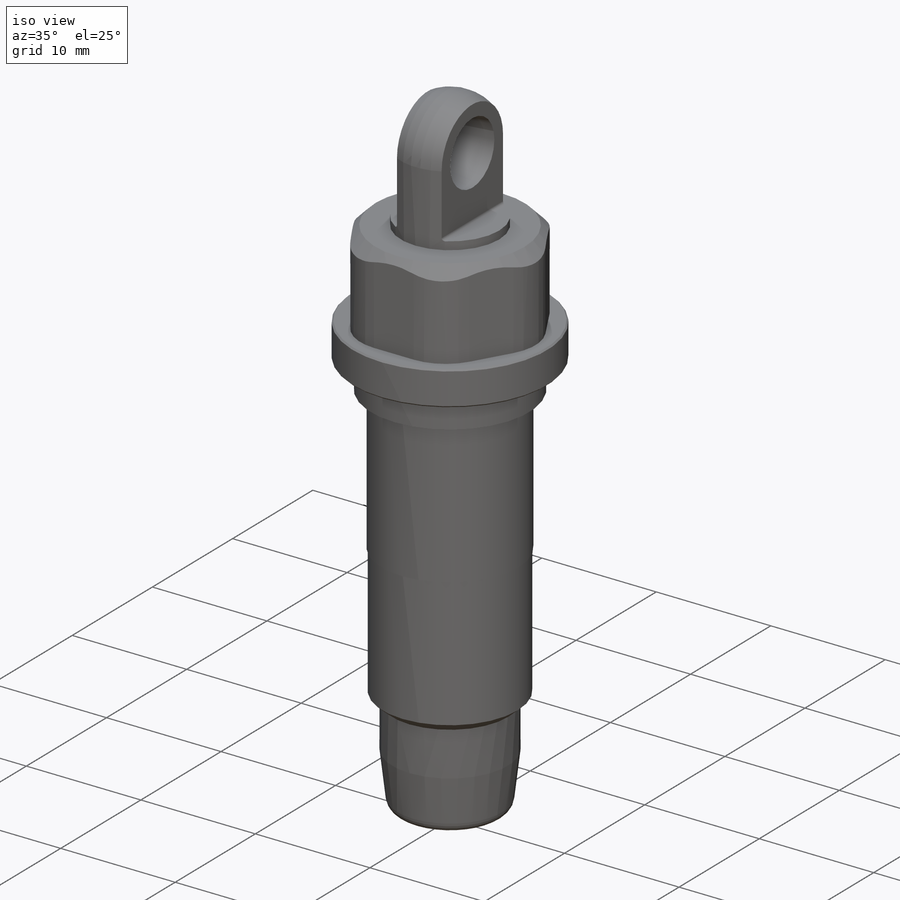
[diagram: iso view]
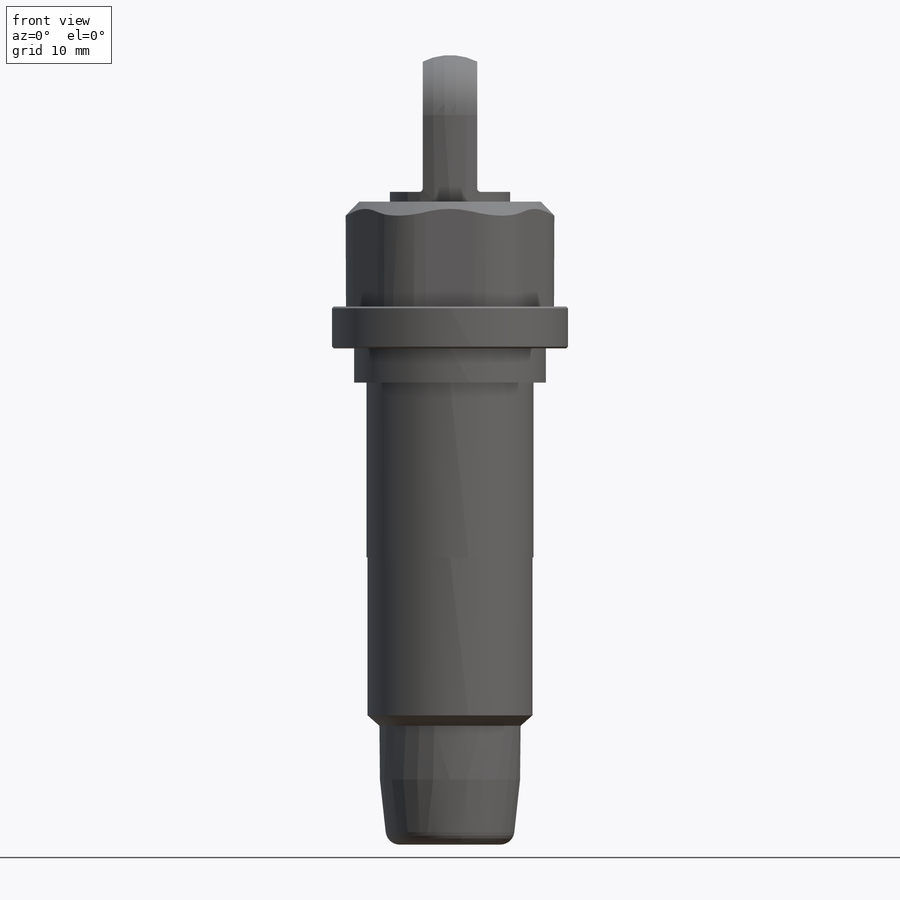
[diagram: front view]
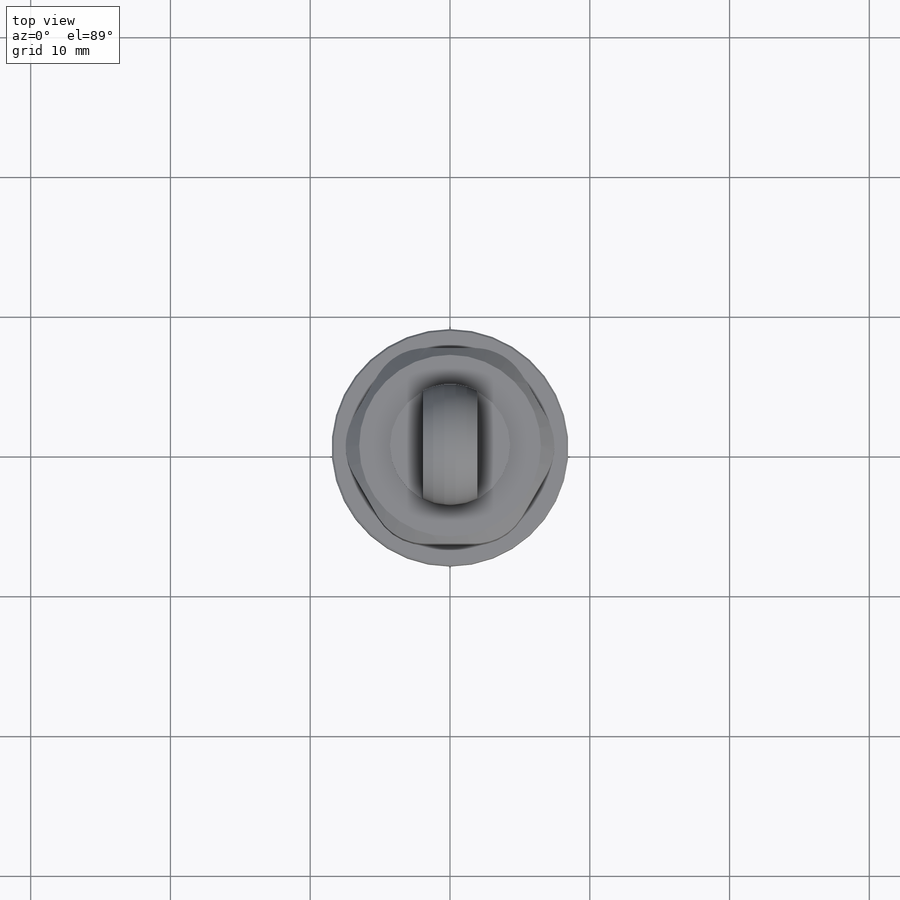
[diagram: top view]
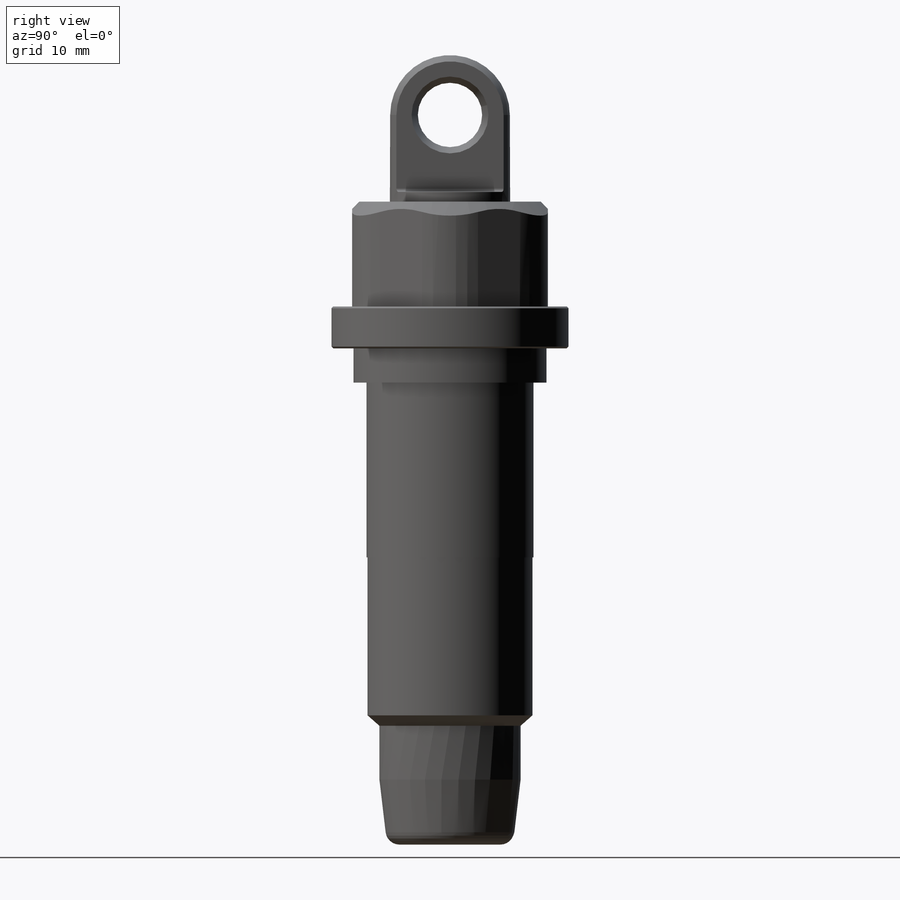
[diagram: right view]
SOLIDWORKS PART (.sldprt)
format: sldprt  version: not decoded by parser v0  size: 464,384 bytes
history: native  units: mm
features: sketch x9, revolve x2, extrude x2, fillet x2, material x1, sweep x1, cut_revolve x1 (+13 scaffold rows collapsed)
feature tree (31):
  scaffold x13  (default folders/planes/origin — collapsed)
  material  "6061-T6 (SS)"
  sketch  "Sketch1"  dims[D1=1.525mm]
  sketch  "Block1-2"  dims[c1.D2=5.0mm c1.D3=3.0mm c1.D4=3.0mm c1.D5=9.25mm c1.D9=8.0mm c1.D1=88.0mm c2.D4=0.6mm c2.D6=5.75mm c2.D7=18.0mm c2.D8=9.0mm c2.D10=8.6mm c2.D11=9.8mm c2.D12=8.6mm c3.D11=9.8mm c3.D12=64.0mm c3.D13=8.25mm c4.D12=27.0mm c4.D13=3.0mm c5.D12=30.0mm c5.D14=61.5mm c5.D15=51.0mm c5.D16=14.0mm c5.D17=7.5mm c5.D18=11.95mm c5.D19=21.0mm c5.D20=10.1mm c5.D21=0.75mm c5.D22=3.85mm c5.D23=11.8mm c5.D24=4.5mm c5.D25=24.5mm c5.D26=3.0mm c5.D27=13.8mm c5.D28=5.45mm c5.D29=13.7mm c5.D30=16.95mm c6.D19=12.5mm c6.D15=0.7mm c6.D14=46.0mm c6.D31=10.1mm c6.D25=37.5mm c7.D31=9.375mm]
  sketch  "Sketch3"  dims[c1.D1=0.75mm c1.D2=1.95mm c1.D3=5.5mm c1.D4=0.8mm c2.D1=1.0mm c2.D4=4.6mm c2.D5=3.9mm]
  revolve  "Revolve1"  Angle=360deg
  sketch  "Sketch4"
  extrude  "Boss-Extrude1"  Depth=3.9mm
  sketch  "3DSketch1"
  sketch  "Sketch5"  dims[D1=8.6mm]
  sweep  "Cut-Sweep1"
  sketch  "Sketch6"
  revolve  "Revolve2"  Angle=360deg
  sketch  "Sketch7"  dims[D3=4.0mm D1=14.0mm D2=14.9mm]
  extrude  "Boss-Extrude3"  [1 undecoded]
  sketch  "Sketch9"  dims[D1=6.5mm D2=1.0mm]
  cut_revolve  "Cut-Revolve1"  Angle=360deg
  fillet  "Fillet1"  Radius=1mm
  fillet  "Fillet2"  Radius=0.25mm
decode coverage: 12 of 17 modeling features carry decoded parameters
note: 1 parameter value undecoded
note: suppression state not decoded; provenance and decode notes live in map.json
